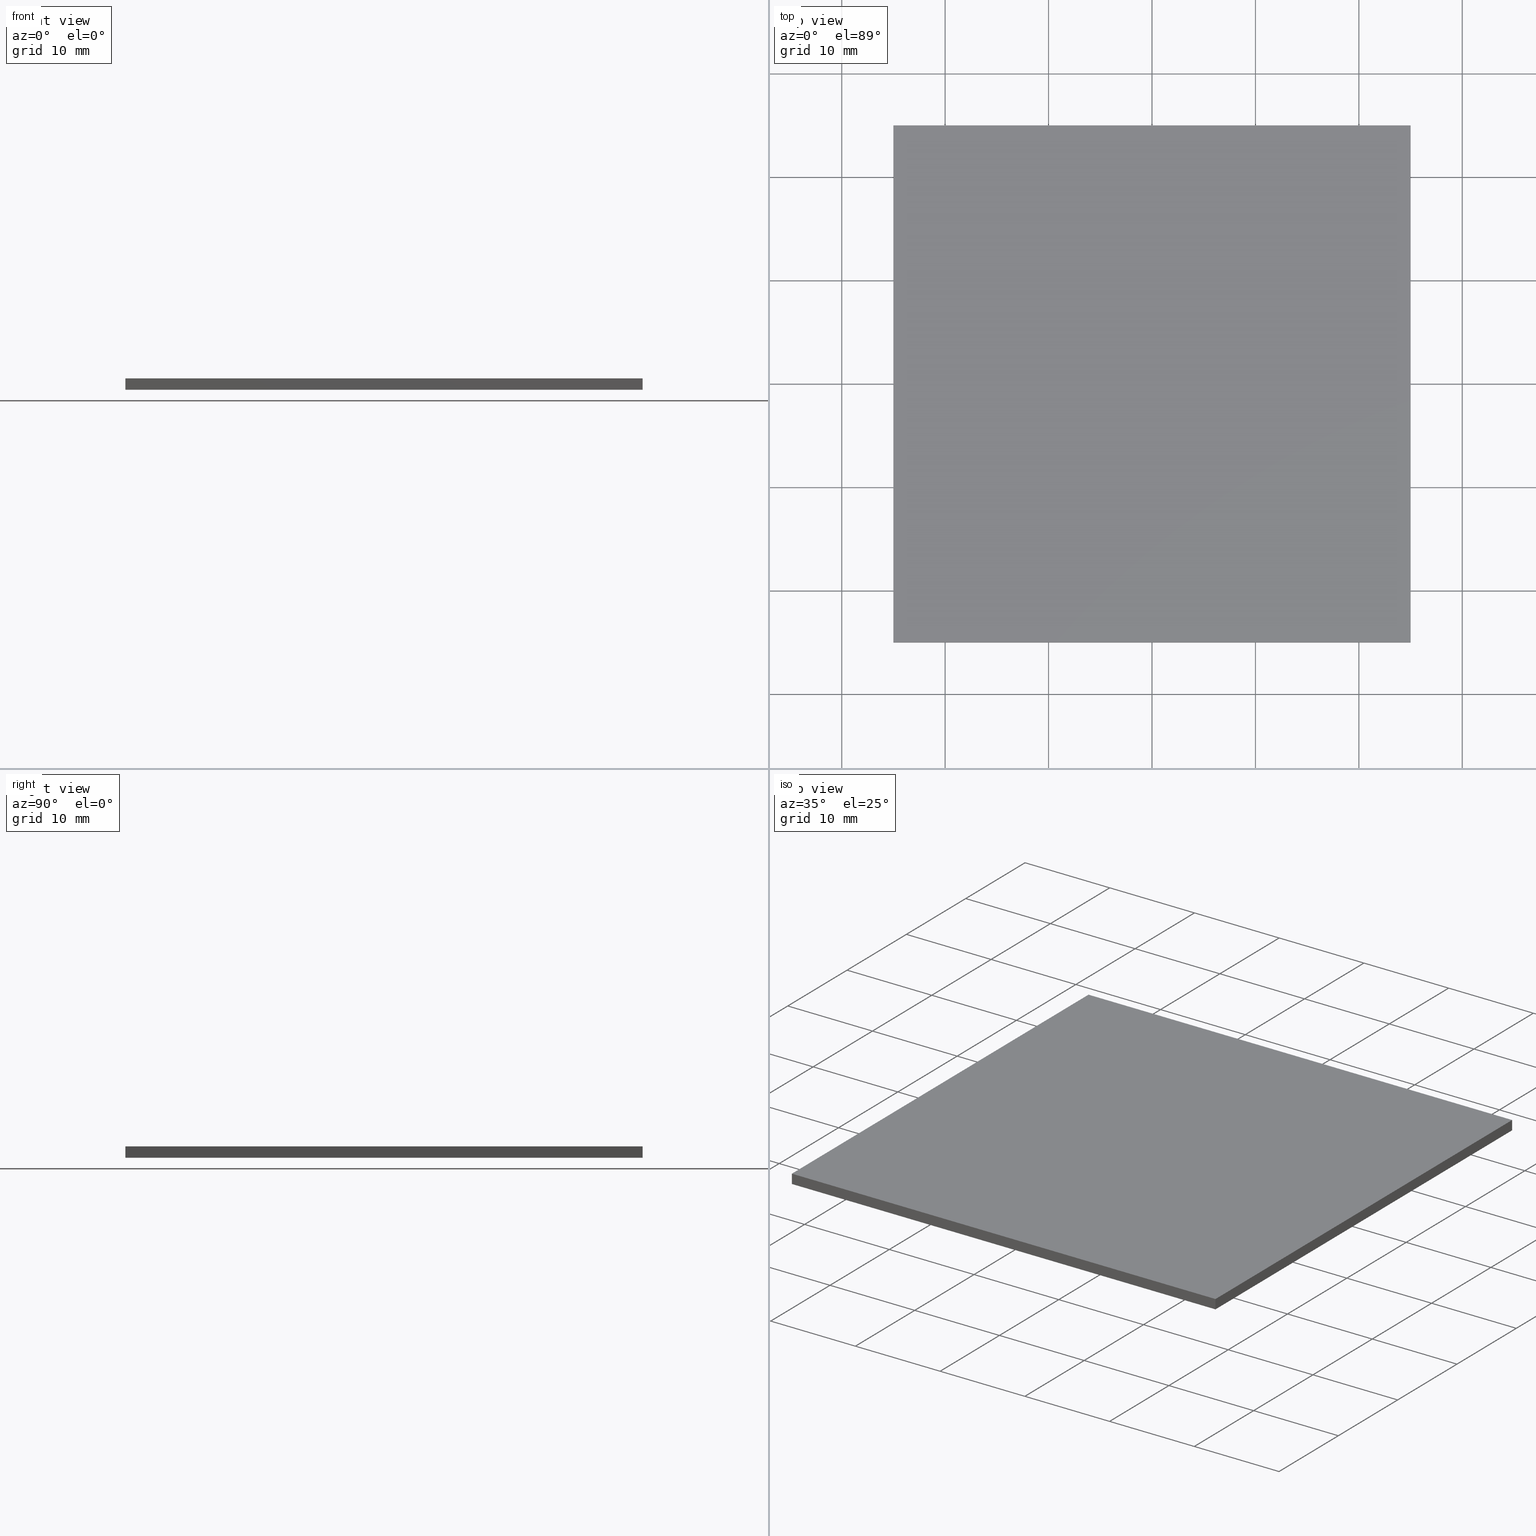
[diagram: canonical four-view strip — front | top / right | iso, engineering-drawing reading convention]
A machine part, canonical four-view strip (front | top / right | iso — engineering-drawing reading convention). The complete STEP part file that produces these views, byte-faithful:
ISO-10303-21;
HEADER;
FILE_DESCRIPTION (( 'STEP AP203' ),
    '1' );
FILE_NAME ('348511.STEP',
    '2019-07-31T07:56:49',
    ( '' ),
    ( '' ),
    'SwSTEP 2.0',
    'SolidWorks 2016',
    '' );
FILE_SCHEMA (( 'CONFIG_CONTROL_DESIGN' ));
ENDSEC;

DATA;
#1 = COORDINATED_UNIVERSAL_TIME_OFFSET ( 8, 0, .AHEAD. ) ;
#2 = COORDINATED_UNIVERSAL_TIME_OFFSET ( 8, 0, .AHEAD. ) ;
#3 = AXIS2_PLACEMENT_3D ( 'NONE', #81, #159, #256 ) ;
#4 = PERSON_AND_ORGANIZATION ( #33, #111 ) ;
#5 = PERSON_AND_ORGANIZATION_ROLE ( 'design_supplier' ) ;
#6 = APPLICATION_CONTEXT ( 'configuration controlled 3d designs of mechanical parts and assemblies' ) ;
#7 = VERTEX_POINT ( 'NONE', #163 ) ;
#8 = PRODUCT ( '348511', '348511', '', ( #223 ) ) ;
#9 = APPROVAL_ROLE ( '' ) ;
#10 = VECTOR ( 'NONE', #69, 1000.000000000000000 ) ;
#11 = AXIS2_PLACEMENT_3D ( 'NONE', #174, #141, #15 ) ;
#12 = ORIENTED_EDGE ( 'NONE', *, *, #241, .F. ) ;
#13 = ORIENTED_EDGE ( 'NONE', *, *, #255, .T. ) ;
#14 = VERTEX_POINT ( 'NONE', #226 ) ;
#15 = DIRECTION ( 'NONE',  ( 0.0000000000000000000, -0.0000000000000000000, 1.000000000000000000 ) ) ;
#16 =( NAMED_UNIT ( * ) SI_UNIT ( $, .STERADIAN. ) SOLID_ANGLE_UNIT ( ) );
#17 = PERSON_AND_ORGANIZATION ( #33, #111 ) ;
#18 = DIRECTION ( 'NONE',  ( 0.0000000000000000000, 0.0000000000000000000, 1.000000000000000000 ) ) ;
#19 = APPLICATION_PROTOCOL_DEFINITION ( 'international standard', 'config_control_design', 1994, #272 ) ;
#20 = LINE ( 'NONE', #22, #280 ) ;
#21 = DIRECTION ( 'NONE',  ( -0.0000000000000000000, 1.000000000000000000, -0.0000000000000000000 ) ) ;
#22 = CARTESIAN_POINT ( 'NONE',  ( 25.00000000000000000, 25.00000000000000000, 1.100000000000000100 ) ) ;
#23 = ORIENTED_EDGE ( 'NONE', *, *, #281, .F. ) ;
#24 = COORDINATED_UNIVERSAL_TIME_OFFSET ( 8, 0, .AHEAD. ) ;
#25 = APPROVAL_DATE_TIME ( #178, #299 ) ;
#26 = APPROVAL_STATUS ( 'not_yet_approved' ) ;
#27 = APPROVAL_ROLE ( '' ) ;
#28 = VECTOR ( 'NONE', #176, 1000.000000000000000 ) ;
#29 = APPROVAL ( #180, 'δָ��' ) ;
#30 = PLANE ( 'NONE',  #3 ) ;
#31 = PERSON_AND_ORGANIZATION ( #33, #111 ) ;
#32 = ADVANCED_FACE ( 'NONE', ( #65 ), #30, .F. ) ;
#33 = PERSON ( 'δָ��', 'δָ��', 'δָ��', ('δָ��'), ('δָ��'), ('δָ��') ) ;
#34 = APPROVAL_ROLE ( '' ) ;
#35 = ORIENTED_EDGE ( 'NONE', *, *, #281, .T. ) ;
#36 = PERSON_AND_ORGANIZATION_ROLE ( 'classification_officer' ) ;
#37 = CALENDAR_DATE ( 2019, 31, 7 ) ;
#38 = LOCAL_TIME ( 15, 56, 49.00000000000000000, #119 ) ;
#39 = CC_DESIGN_APPROVAL ( #63, ( #229 ) ) ;
#40 = CARTESIAN_POINT ( 'NONE',  ( -25.00000000000000000, -25.00000000000000000, 0.0000000000000000000 ) ) ;
#41 = DIRECTION ( 'NONE',  ( 0.0000000000000000000, -1.000000000000000000, 0.0000000000000000000 ) ) ;
#42 = SHAPE_DEFINITION_REPRESENTATION ( #128, #96 ) ;
#43 = DIRECTION ( 'NONE',  ( 0.0000000000000000000, 0.0000000000000000000, 1.000000000000000000 ) ) ;
#44 = CC_DESIGN_PERSON_AND_ORGANIZATION_ASSIGNMENT ( #56, #231, ( #213 ) ) ;
#45 = DIRECTION ( 'NONE',  ( -0.0000000000000000000, 1.000000000000000000, -0.0000000000000000000 ) ) ;
#46 = ORIENTED_EDGE ( 'NONE', *, *, #264, .F. ) ;
#47 = CARTESIAN_POINT ( 'NONE',  ( -25.00000000000000000, 25.00000000000000000, 1.100000000000000100 ) ) ;
#48 = PERSON_AND_ORGANIZATION ( #33, #111 ) ;
#49 = COORDINATED_UNIVERSAL_TIME_OFFSET ( 8, 0, .AHEAD. ) ;
#50 = CALENDAR_DATE ( 2019, 31, 7 ) ;
#51 = LINE ( 'NONE', #122, #129 ) ;
#52 = APPLICATION_CONTEXT ( 'configuration controlled 3d designs of mechanical parts and assemblies' ) ;
#53 = PERSON_AND_ORGANIZATION_ROLE ( 'creator' ) ;
#54 = ORIENTED_EDGE ( 'NONE', *, *, #302, .F. ) ;
#55 = PERSON_AND_ORGANIZATION_ROLE ( 'design_owner' ) ;
#56 = PERSON_AND_ORGANIZATION ( #33, #111 ) ;
#57 = EDGE_CURVE ( 'NONE', #275, #101, #303, .T. ) ;
#58 = APPROVAL_ROLE ( '' ) ;
#59 = CC_DESIGN_PERSON_AND_ORGANIZATION_ASSIGNMENT ( #118, #279, ( #229 ) ) ;
#60 = LINE ( 'NONE', #204, #75 ) ;
#61 = CALENDAR_DATE ( 2019, 31, 7 ) ;
#62 = EDGE_LOOP ( 'NONE', ( #123, #253, #265, #35 ) ) ;
#63 = APPROVAL ( #236, 'δָ��' ) ;
#64 = LOCAL_TIME ( 15, 56, 49.00000000000000000, #49 ) ;
#65 = FACE_OUTER_BOUND ( 'NONE', #62, .T. ) ;
#66 = DIRECTION ( 'NONE',  ( 0.0000000000000000000, -0.0000000000000000000, -1.000000000000000000 ) ) ;
#67 = CARTESIAN_POINT ( 'NONE',  ( -25.00000000000000000, 25.00000000000000000, 1.100000000000000100 ) ) ;
#68 = CC_DESIGN_APPROVAL ( #151, ( #259 ) ) ;
#69 = DIRECTION ( 'NONE',  ( 0.0000000000000000000, -1.000000000000000000, 0.0000000000000000000 ) ) ;
#70 = PERSON_AND_ORGANIZATION_ROLE ( 'design_owner' ) ;
#71 = LINE ( 'NONE', #147, #10 ) ;
#72 = EDGE_CURVE ( 'NONE', #101, #139, #60, .T. ) ;
#73 = COORDINATED_UNIVERSAL_TIME_OFFSET ( 8, 0, .AHEAD. ) ;
#74 = ORIENTED_EDGE ( 'NONE', *, *, #276, .T. ) ;
#75 = VECTOR ( 'NONE', #160, 1000.000000000000000 ) ;
#76 = APPROVAL_ROLE ( '' ) ;
#77 = CALENDAR_DATE ( 2019, 31, 7 ) ;
#78 = CC_DESIGN_DATE_AND_TIME_ASSIGNMENT ( #135, #79, ( #229 ) ) ;
#79 = DATE_TIME_ROLE ( 'classification_date' ) ;
#80 = ADVANCED_FACE ( 'NONE', ( #120 ), #306, .F. ) ;
#81 = CARTESIAN_POINT ( 'NONE',  ( -25.00000000000000000, 25.00000000000000000, 1.100000000000000100 ) ) ;
#82 = PERSON_AND_ORGANIZATION_ROLE ( 'creator' ) ;
#83 = CALENDAR_DATE ( 2019, 31, 7 ) ;
#84 = ORIENTED_EDGE ( 'NONE', *, *, #241, .T. ) ;
#85 = EDGE_LOOP ( 'NONE', ( #74, #169, #12, #154 ) ) ;
#86 = DATE_TIME_ROLE ( 'creation_date' ) ;
#87 = UNCERTAINTY_MEASURE_WITH_UNIT (LENGTH_MEASURE( 1.000000000000000100E-005 ), #248, 'distance_accuracy_value', 'NONE');
#88 = CC_DESIGN_PERSON_AND_ORGANIZATION_ASSIGNMENT ( #230, #301, ( #200 ) ) ;
#89 = LINE ( 'NONE', #244, #28 ) ;
#90 = EDGE_CURVE ( 'NONE', #101, #116, #217, .T. ) ;
#91 = VECTOR ( 'NONE', #242, 1000.000000000000000 ) ;
#92 = PRODUCT_RELATED_PRODUCT_CATEGORY ( 'detail', '', ( #283 ) ) ;
#93 = PERSON_AND_ORGANIZATION ( #33, #111 ) ;
#94 = PLANE ( 'NONE',  #191 ) ;
#95 = COORDINATED_UNIVERSAL_TIME_OFFSET ( 8, 0, .AHEAD. ) ;
#96 = ADVANCED_BREP_SHAPE_REPRESENTATION ( '348511', ( #216, #212 ), #142 ) ;
#97 = DIRECTION ( 'NONE',  ( 1.000000000000000000, 0.0000000000000000000, 0.0000000000000000000 ) ) ;
#98 = LINE ( 'NONE', #177, #181 ) ;
#99 = APPLICATION_PROTOCOL_DEFINITION ( 'international standard', 'config_control_design', 1994, #245 ) ;
#100 = CARTESIAN_POINT ( 'NONE',  ( 0.0000000000000000000, 0.0000000000000000000, 1.100000000000000100 ) ) ;
#101 = VERTEX_POINT ( 'NONE', #184 ) ;
#102 = LOCAL_TIME ( 15, 56, 49.00000000000000000, #24 ) ;
#103 = APPROVAL ( #284, 'δָ��' ) ;
#104 = APPROVAL_DATE_TIME ( #310, #151 ) ;
#105 = CC_DESIGN_PERSON_AND_ORGANIZATION_ASSIGNMENT ( #298, #70, ( #8 ) ) ;
#106 = APPROVAL ( #274, 'δָ��' ) ;
#107 = SECURITY_CLASSIFICATION_LEVEL ( 'unclassified' ) ;
#108 = APPROVAL_STATUS ( 'not_yet_approved' ) ;
#109 = DATE_TIME_ROLE ( 'creation_date' ) ;
#110 = VECTOR ( 'NONE', #202, 1000.000000000000000 ) ;
#111 = ORGANIZATION ( 'δָ��', 'δָ��', '' ) ;
#112 = CC_DESIGN_APPROVAL ( #106, ( #136 ) ) ;
#113 = CC_DESIGN_APPROVAL ( #103, ( #199 ) ) ;
#114 = APPROVAL_PERSON_ORGANIZATION ( #17, #151, #9 ) ;
#115 = CARTESIAN_POINT ( 'NONE',  ( -25.00000000000000000, 25.00000000000000000, 0.0000000000000000000 ) ) ;
#116 = VERTEX_POINT ( 'NONE', #309 ) ;
#117 = CC_DESIGN_DATE_AND_TIME_ASSIGNMENT ( #167, #86, ( #136 ) ) ;
#118 = PERSON_AND_ORGANIZATION ( #33, #111 ) ;
#119 = COORDINATED_UNIVERSAL_TIME_OFFSET ( 8, 0, .AHEAD. ) ;
#120 = FACE_OUTER_BOUND ( 'NONE', #131, .T. ) ;
#121 = DIRECTION ( 'NONE',  ( -0.0000000000000000000, 0.0000000000000000000, 1.000000000000000000 ) ) ;
#122 = CARTESIAN_POINT ( 'NONE',  ( -25.00000000000000000, 25.00000000000000000, 0.0000000000000000000 ) ) ;
#123 = ORIENTED_EDGE ( 'NONE', *, *, #247, .T. ) ;
#124 = COORDINATED_UNIVERSAL_TIME_OFFSET ( 8, 0, .AHEAD. ) ;
#125 = CC_DESIGN_PERSON_AND_ORGANIZATION_ASSIGNMENT ( #262, #215, ( #136 ) ) ;
#126 = ORIENTED_EDGE ( 'NONE', *, *, #276, .F. ) ;
#127 = PRODUCT_RELATED_PRODUCT_CATEGORY ( 'detail', '', ( #8 ) ) ;
#128 = PRODUCT_DEFINITION_SHAPE ( 'NONE', 'NONE',  #200 ) ;
#129 = VECTOR ( 'NONE', #222, 1000.000000000000000 ) ;
#130 = DATE_AND_TIME ( #214, #261 ) ;
#131 = EDGE_LOOP ( 'NONE', ( #219, #46, #126, #54 ) ) ;
#132 = APPROVAL_DATE_TIME ( #233, #106 ) ;
#133 = SECURITY_CLASSIFICATION_LEVEL ( 'unclassified' ) ;
#134 = DATE_TIME_ROLE ( 'classification_date' ) ;
#135 = DATE_AND_TIME ( #50, #300 ) ;
#136 = PRODUCT_DEFINITION ( 'δ֪', '', #199, #196 ) ;
#137 = APPROVAL_DATE_TIME ( #208, #103 ) ;
#138 = CC_DESIGN_PERSON_AND_ORGANIZATION_ASSIGNMENT ( #48, #82, ( #213 ) ) ;
#139 = VERTEX_POINT ( 'NONE', #40 ) ;
#140 = FACE_OUTER_BOUND ( 'NONE', #193, .T. ) ;
#141 = DIRECTION ( 'NONE',  ( 0.0000000000000000000, 1.000000000000000000, 0.0000000000000000000 ) ) ;
#142 =( GEOMETRIC_REPRESENTATION_CONTEXT ( 3 ) GLOBAL_UNCERTAINTY_ASSIGNED_CONTEXT ( ( #87 ) ) GLOBAL_UNIT_ASSIGNED_CONTEXT ( ( #248, #268, #16 ) ) REPRESENTATION_CONTEXT ( 'NONE', 'WORKASPACE' ) );
#143 = DIRECTION ( 'NONE',  ( -0.0000000000000000000, 0.0000000000000000000, 1.000000000000000000 ) ) ;
#144 = EDGE_LOOP ( 'NONE', ( #161, #205, #257, #211 ) ) ;
#145 = CC_DESIGN_APPROVAL ( #29, ( #213 ) ) ;
#146 = FACE_OUTER_BOUND ( 'NONE', #307, .T. ) ;
#147 = CARTESIAN_POINT ( 'NONE',  ( -25.00000000000000000, 25.00000000000000000, 0.0000000000000000000 ) ) ;
#148 = PERSON_AND_ORGANIZATION ( #33, #111 ) ;
#149 = CARTESIAN_POINT ( 'NONE',  ( 0.0000000000000000000, 0.0000000000000000000, 0.0000000000000000000 ) ) ;
#150 = CARTESIAN_POINT ( 'NONE',  ( -25.00000000000000000, -25.00000000000000000, 0.0000000000000000000 ) ) ;
#151 = APPROVAL ( #26, 'δָ��' ) ;
#152 = CARTESIAN_POINT ( 'NONE',  ( 25.00000000000000000, 25.00000000000000000, 1.100000000000000100 ) ) ;
#153 = CARTESIAN_POINT ( 'NONE',  ( 25.00000000000000000, -25.00000000000000000, 1.100000000000000100 ) ) ;
#154 = ORIENTED_EDGE ( 'NONE', *, *, #235, .T. ) ;
#155 = ORIENTED_EDGE ( 'NONE', *, *, #264, .T. ) ;
#156 = COORDINATED_UNIVERSAL_TIME_OFFSET ( 8, 0, .AHEAD. ) ;
#157 = MECHANICAL_CONTEXT ( 'NONE', #52, 'mechanical' ) ;
#158 = FACE_OUTER_BOUND ( 'NONE', #144, .T. ) ;
#159 = DIRECTION ( 'NONE',  ( 1.000000000000000000, 0.0000000000000000000, -0.0000000000000000000 ) ) ;
#160 = DIRECTION ( 'NONE',  ( -0.0000000000000000000, -0.0000000000000000000, -1.000000000000000000 ) ) ;
#161 = ORIENTED_EDGE ( 'NONE', *, *, #302, .T. ) ;
#162 = AXIS2_PLACEMENT_3D ( 'NONE', #152, #224, #313 ) ;
#163 = CARTESIAN_POINT ( 'NONE',  ( 25.00000000000000000, 25.00000000000000000, 1.100000000000000100 ) ) ;
#164 = PERSON_AND_ORGANIZATION ( #33, #111 ) ;
#165 = CC_DESIGN_PERSON_AND_ORGANIZATION_ASSIGNMENT ( #173, #5, ( #199 ) ) ;
#166 = LOCAL_TIME ( 15, 56, 49.00000000000000000, #73 ) ;
#167 = DATE_AND_TIME ( #195, #64 ) ;
#168 = AXIS2_PLACEMENT_3D ( 'NONE', #239, #143, #220 ) ;
#169 = ORIENTED_EDGE ( 'NONE', *, *, #255, .F. ) ;
#170 = CARTESIAN_POINT ( 'NONE',  ( -25.00000000000000000, 25.00000000000000000, 1.100000000000000100 ) ) ;
#171 = CARTESIAN_POINT ( 'NONE',  ( -25.00000000000000000, 25.00000000000000000, 1.100000000000000100 ) ) ;
#172 = LOCAL_TIME ( 15, 56, 49.00000000000000000, #95 ) ;
#173 = PERSON_AND_ORGANIZATION ( #33, #111 ) ;
#174 = CARTESIAN_POINT ( 'NONE',  ( -25.00000000000000000, -25.00000000000000000, 1.100000000000000100 ) ) ;
#175 = VECTOR ( 'NONE', #290, 1000.000000000000000 ) ;
#176 = DIRECTION ( 'NONE',  ( -0.0000000000000000000, -0.0000000000000000000, -1.000000000000000000 ) ) ;
#177 = CARTESIAN_POINT ( 'NONE',  ( 25.00000000000000000, 25.00000000000000000, 0.0000000000000000000 ) ) ;
#178 = DATE_AND_TIME ( #77, #188 ) ;
#179 = CC_DESIGN_PERSON_AND_ORGANIZATION_ASSIGNMENT ( #93, #53, ( #199 ) ) ;
#180 = APPROVAL_STATUS ( 'not_yet_approved' ) ;
#181 = VECTOR ( 'NONE', #21, 1000.000000000000000 ) ;
#182 = CARTESIAN_POINT ( 'NONE',  ( -25.00000000000000000, 25.00000000000000000, 1.100000000000000100 ) ) ;
#183 = AXIS2_PLACEMENT_3D ( 'NONE', #171, #41, #66 ) ;
#184 = CARTESIAN_POINT ( 'NONE',  ( -25.00000000000000000, -25.00000000000000000, 1.100000000000000100 ) ) ;
#185 = APPLICATION_PROTOCOL_DEFINITION ( 'international standard', 'config_control_design', 1994, #52 ) ;
#186 = ADVANCED_FACE ( 'NONE', ( #140 ), #192, .F. ) ;
#187 = PERSON_AND_ORGANIZATION ( #33, #111 ) ;
#188 = LOCAL_TIME ( 15, 56, 49.00000000000000000, #2 ) ;
#189 = LOCAL_TIME ( 15, 56, 49.00000000000000000, #278 ) ;
#190 = APPROVAL_PERSON_ORGANIZATION ( #187, #106, #76 ) ;
#191 = AXIS2_PLACEMENT_3D ( 'NONE', #100, #121, #294 ) ;
#192 = PLANE ( 'NONE',  #183 ) ;
#193 = EDGE_LOOP ( 'NONE', ( #155, #23, #198, #13 ) ) ;
#194 = CC_DESIGN_SECURITY_CLASSIFICATION ( #259, ( #199 ) ) ;
#195 = CALENDAR_DATE ( 2019, 31, 7 ) ;
#196 = DESIGN_CONTEXT ( 'detailed design', #245, 'design' ) ;
#197 = DIRECTION ( 'NONE',  ( 1.000000000000000000, 0.0000000000000000000, 0.0000000000000000000 ) ) ;
#198 = ORIENTED_EDGE ( 'NONE', *, *, #218, .F. ) ;
#199 = PRODUCT_DEFINITION_FORMATION_WITH_SPECIFIED_SOURCE ( '�κ�', '', #8, .NOT_KNOWN. ) ;
#200 = PRODUCT_DEFINITION ( 'δ֪', '', #213, #285 ) ;
#201 = DIRECTION ( 'NONE',  ( 1.000000000000000000, 0.0000000000000000000, 0.0000000000000000000 ) ) ;
#202 = DIRECTION ( 'NONE',  ( -1.000000000000000000, -0.0000000000000000000, -0.0000000000000000000 ) ) ;
#203 = APPROVAL_PERSON_ORGANIZATION ( #4, #63, #27 ) ;
#204 = CARTESIAN_POINT ( 'NONE',  ( -25.00000000000000000, -25.00000000000000000, 1.100000000000000100 ) ) ;
#205 = ORIENTED_EDGE ( 'NONE', *, *, #235, .F. ) ;
#206 = PRODUCT_DEFINITION_SHAPE ( 'NONE', 'NONE',  #136 ) ;
#207 = ADVANCED_FACE ( 'NONE', ( #158 ), #289, .F. ) ;
#208 = DATE_AND_TIME ( #237, #254 ) ;
#209 = VERTEX_POINT ( 'NONE', #115 ) ;
#210 = APPLICATION_PROTOCOL_DEFINITION ( 'international standard', 'config_control_design', 1994, #6 ) ;
#211 = ORIENTED_EDGE ( 'NONE', *, *, #72, .T. ) ;
#212 = AXIS2_PLACEMENT_3D ( 'NONE', #149, #18, #197 ) ;
#213 = PRODUCT_DEFINITION_FORMATION_WITH_SPECIFIED_SOURCE ( '�κ�', '', #283, .NOT_KNOWN. ) ;
#214 = CALENDAR_DATE ( 2019, 31, 7 ) ;
#215 = PERSON_AND_ORGANIZATION_ROLE ( 'creator' ) ;
#216 = MANIFOLD_SOLID_BREP ( '͹̨-����1', #282 ) ;
#217 = LINE ( 'NONE', #267, #91 ) ;
#218 = EDGE_CURVE ( 'NONE', #7, #275, #240, .T. ) ;
#219 = ORIENTED_EDGE ( 'NONE', *, *, #247, .F. ) ;
#220 = DIRECTION ( 'NONE',  ( 1.000000000000000000, 0.0000000000000000000, 0.0000000000000000000 ) ) ;
#221 = APPROVAL_PERSON_ORGANIZATION ( #164, #29, #234 ) ;
#222 = DIRECTION ( 'NONE',  ( -1.000000000000000000, -0.0000000000000000000, -0.0000000000000000000 ) ) ;
#223 = MECHANICAL_CONTEXT ( 'NONE', #272, 'mechanical' ) ;
#224 = DIRECTION ( 'NONE',  ( -1.000000000000000000, 0.0000000000000000000, 0.0000000000000000000 ) ) ;
#225 = ORIENTED_EDGE ( 'NONE', *, *, #218, .T. ) ;
#226 = CARTESIAN_POINT ( 'NONE',  ( 25.00000000000000000, -25.00000000000000000, 0.0000000000000000000 ) ) ;
#227 = ADVANCED_FACE ( 'NONE', ( #146 ), #94, .T. ) ;
#228 = DATE_AND_TIME ( #37, #102 ) ;
#229 = SECURITY_CLASSIFICATION ( '', '', #133 ) ;
#230 = PERSON_AND_ORGANIZATION ( #33, #111 ) ;
#231 = PERSON_AND_ORGANIZATION_ROLE ( 'design_supplier' ) ;
#232 = VECTOR ( 'NONE', #269, 1000.000000000000000 ) ;
#233 = DATE_AND_TIME ( #83, #38 ) ;
#234 = APPROVAL_ROLE ( '' ) ;
#235 = EDGE_CURVE ( 'NONE', #116, #14, #292, .T. ) ;
#236 = APPROVAL_STATUS ( 'not_yet_approved' ) ;
#237 = CALENDAR_DATE ( 2019, 31, 7 ) ;
#238 = APPROVAL_PERSON_ORGANIZATION ( #31, #103, #34 ) ;
#239 = CARTESIAN_POINT ( 'NONE',  ( 0.0000000000000000000, 0.0000000000000000000, 0.0000000000000000000 ) ) ;
#240 = LINE ( 'NONE', #170, #110 ) ;
#241 = EDGE_CURVE ( 'NONE', #116, #7, #20, .T. ) ;
#242 = DIRECTION ( 'NONE',  ( 1.000000000000000000, 0.0000000000000000000, 0.0000000000000000000 ) ) ;
#243 = VECTOR ( 'NONE', #250, 1000.000000000000000 ) ;
#244 = CARTESIAN_POINT ( 'NONE',  ( 25.00000000000000000, 25.00000000000000000, 1.100000000000000100 ) ) ;
#245 = APPLICATION_CONTEXT ( 'configuration controlled 3d designs of mechanical parts and assemblies' ) ;
#246 = ORIENTED_EDGE ( 'NONE', *, *, #57, .T. ) ;
#247 = EDGE_CURVE ( 'NONE', #209, #139, #71, .T. ) ;
#248 =( LENGTH_UNIT ( ) NAMED_UNIT ( * ) SI_UNIT ( .MILLI., .METRE. ) );
#249 = ADVANCED_FACE ( 'NONE', ( #297 ), #311, .F. ) ;
#250 = DIRECTION ( 'NONE',  ( 0.0000000000000000000, -1.000000000000000000, 0.0000000000000000000 ) ) ;
#251 = PERSON_AND_ORGANIZATION ( #33, #111 ) ;
#252 = CC_DESIGN_PERSON_AND_ORGANIZATION_ASSIGNMENT ( #288, #36, ( #259 ) ) ;
#253 = ORIENTED_EDGE ( 'NONE', *, *, #72, .F. ) ;
#254 = LOCAL_TIME ( 15, 56, 49.00000000000000000, #1 ) ;
#255 = EDGE_CURVE ( 'NONE', #7, #263, #89, .T. ) ;
#256 = DIRECTION ( 'NONE',  ( -0.0000000000000000000, 0.0000000000000000000, -1.000000000000000000 ) ) ;
#257 = ORIENTED_EDGE ( 'NONE', *, *, #90, .F. ) ;
#258 = AXIS2_PLACEMENT_3D ( 'NONE', #315, #43, #97 ) ;
#259 = SECURITY_CLASSIFICATION ( '', '', #107 ) ;
#260 = LINE ( 'NONE', #67, #175 ) ;
#261 = LOCAL_TIME ( 15, 56, 49.00000000000000000, #156 ) ;
#262 = PERSON_AND_ORGANIZATION ( #33, #111 ) ;
#263 = VERTEX_POINT ( 'NONE', #273 ) ;
#264 = EDGE_CURVE ( 'NONE', #263, #209, #51, .T. ) ;
#265 = ORIENTED_EDGE ( 'NONE', *, *, #57, .F. ) ;
#266 = APPROVAL_DATE_TIME ( #295, #63 ) ;
#267 = CARTESIAN_POINT ( 'NONE',  ( -25.00000000000000000, -25.00000000000000000, 1.100000000000000100 ) ) ;
#268 =( NAMED_UNIT ( * ) PLANE_ANGLE_UNIT ( ) SI_UNIT ( $, .RADIAN. ) );
#269 = DIRECTION ( 'NONE',  ( -0.0000000000000000000, -0.0000000000000000000, -1.000000000000000000 ) ) ;
#270 = ORIENTED_EDGE ( 'NONE', *, *, #90, .T. ) ;
#271 = CC_DESIGN_PERSON_AND_ORGANIZATION_ASSIGNMENT ( #148, #55, ( #283 ) ) ;
#272 = APPLICATION_CONTEXT ( 'configuration controlled 3d designs of mechanical parts and assemblies' ) ;
#273 = CARTESIAN_POINT ( 'NONE',  ( 25.00000000000000000, 25.00000000000000000, 0.0000000000000000000 ) ) ;
#274 = APPROVAL_STATUS ( 'not_yet_approved' ) ;
#275 = VERTEX_POINT ( 'NONE', #47 ) ;
#276 = EDGE_CURVE ( 'NONE', #14, #263, #98, .T. ) ;
#277 = CC_DESIGN_DATE_AND_TIME_ASSIGNMENT ( #312, #109, ( #200 ) ) ;
#278 = COORDINATED_UNIVERSAL_TIME_OFFSET ( 8, 0, .AHEAD. ) ;
#279 = PERSON_AND_ORGANIZATION_ROLE ( 'classification_officer' ) ;
#280 = VECTOR ( 'NONE', #45, 1000.000000000000000 ) ;
#281 = EDGE_CURVE ( 'NONE', #275, #209, #260, .T. ) ;
#282 = CLOSED_SHELL ( 'NONE', ( #32, #207, #249, #186, #227, #80 ) ) ;
#283 = PRODUCT ( '348511', '348511', '', ( #157 ) ) ;
#284 = APPROVAL_STATUS ( 'not_yet_approved' ) ;
#285 = DESIGN_CONTEXT ( 'detailed design', #6, 'design' ) ;
#286 = CC_DESIGN_DATE_AND_TIME_ASSIGNMENT ( #228, #134, ( #259 ) ) ;
#287 = CALENDAR_DATE ( 2019, 31, 7 ) ;
#288 = PERSON_AND_ORGANIZATION ( #33, #111 ) ;
#289 = PLANE ( 'NONE',  #11 ) ;
#290 = DIRECTION ( 'NONE',  ( -0.0000000000000000000, -0.0000000000000000000, -1.000000000000000000 ) ) ;
#291 = LINE ( 'NONE', #150, #305 ) ;
#292 = LINE ( 'NONE', #153, #232 ) ;
#293 = CC_DESIGN_SECURITY_CLASSIFICATION ( #229, ( #213 ) ) ;
#294 = DIRECTION ( 'NONE',  ( 1.000000000000000000, 0.0000000000000000000, 0.0000000000000000000 ) ) ;
#295 = DATE_AND_TIME ( #61, #166 ) ;
#296 = APPROVAL_PERSON_ORGANIZATION ( #251, #299, #58 ) ;
#297 = FACE_OUTER_BOUND ( 'NONE', #85, .T. ) ;
#298 = PERSON_AND_ORGANIZATION ( #33, #111 ) ;
#299 = APPROVAL ( #108, 'δָ��' ) ;
#300 = LOCAL_TIME ( 15, 56, 49.00000000000000000, #124 ) ;
#301 = PERSON_AND_ORGANIZATION_ROLE ( 'creator' ) ;
#302 = EDGE_CURVE ( 'NONE', #139, #14, #291, .T. ) ;
#303 = LINE ( 'NONE', #182, #243 ) ;
#304 = CALENDAR_DATE ( 2019, 31, 7 ) ;
#305 = VECTOR ( 'NONE', #201, 1000.000000000000000 ) ;
#306 = PLANE ( 'NONE',  #168 ) ;
#307 = EDGE_LOOP ( 'NONE', ( #246, #270, #84, #225 ) ) ;
#308 = APPROVAL_DATE_TIME ( #130, #29 ) ;
#309 = CARTESIAN_POINT ( 'NONE',  ( 25.00000000000000000, -25.00000000000000000, 1.100000000000000100 ) ) ;
#310 = DATE_AND_TIME ( #304, #189 ) ;
#311 = PLANE ( 'NONE',  #162 ) ;
#312 = DATE_AND_TIME ( #287, #172 ) ;
#313 = DIRECTION ( 'NONE',  ( 0.0000000000000000000, 0.0000000000000000000, 1.000000000000000000 ) ) ;
#314 = CC_DESIGN_APPROVAL ( #299, ( #200 ) ) ;
#315 = CARTESIAN_POINT ( 'NONE',  ( 0.0000000000000000000, 0.0000000000000000000, 0.0000000000000000000 ) ) ;
ENDSEC;
END-ISO-10303-21;
